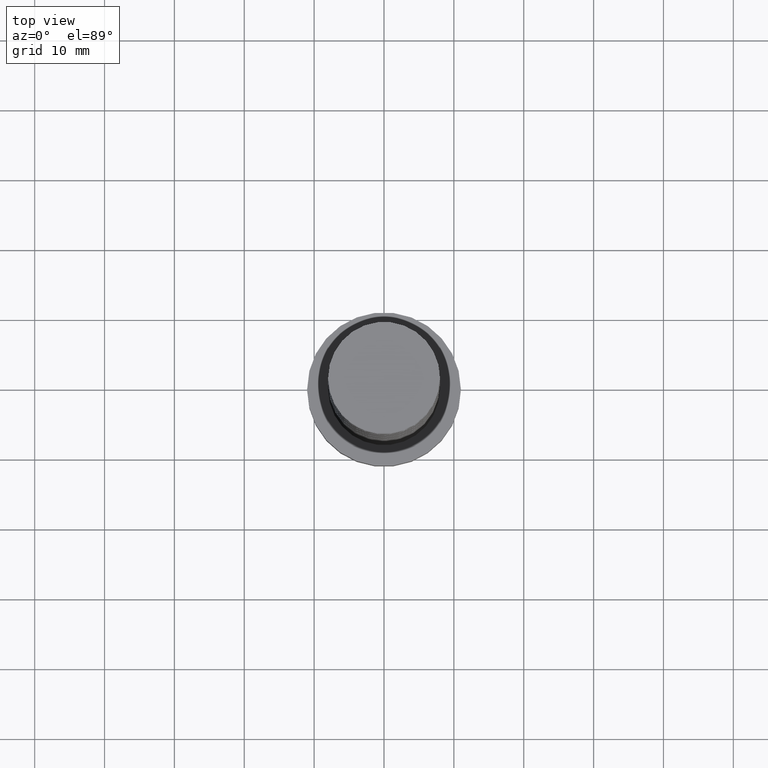
[diagram: clean part render]
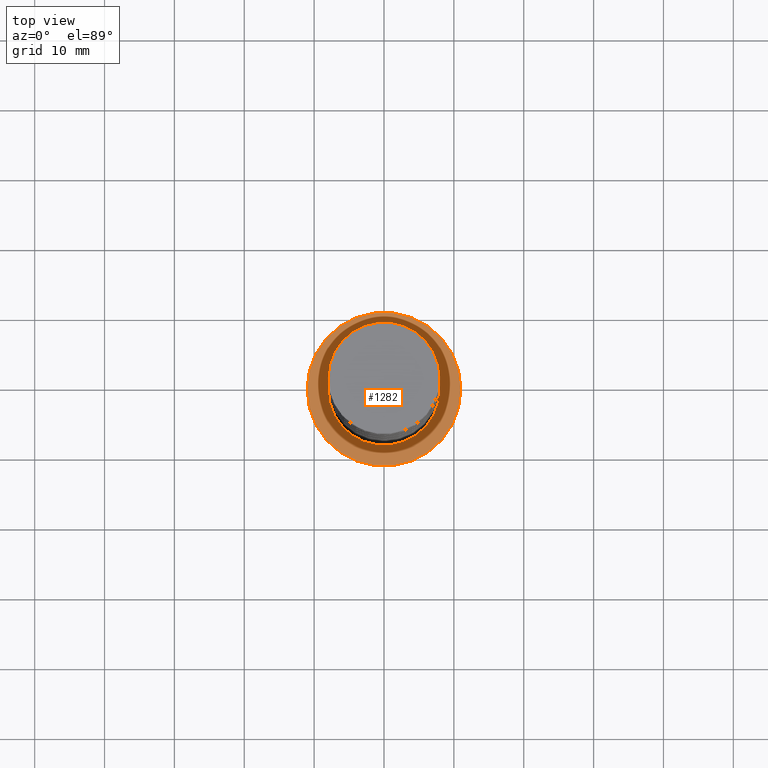
[diagram: same view with one face highlighted and labeled with its STEP entity id]
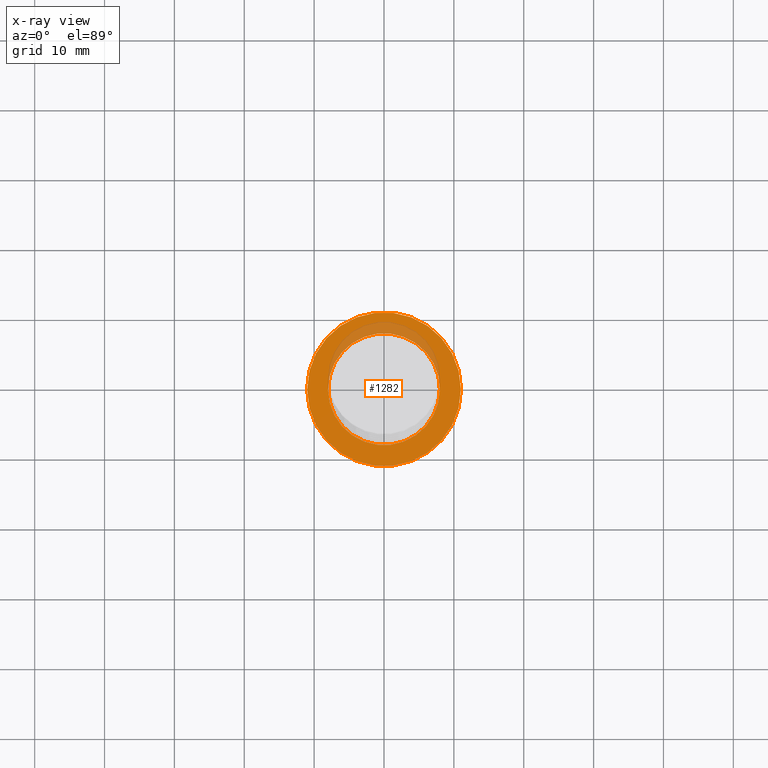
[diagram: x-ray of the same camera — body ghosted, the highlighted face saturated]
A machine part, top view. The second image highlights one B-rep face of the part: STEP entity #1282.
The next image is the same camera in x-ray: the body ghosted, the highlighted face saturated — about 15% of this face is hidden behind the body in this view.
In plain terms, the highlighted planar face has unit normal (0, 0, 1).
Its self-contained STEP definition (entity closure, byte-faithful):
#25 = CARTESIAN_POINT ( 'NONE',  ( -11.00000000000000000, 0.000000000000000000, 7.000000000000000000 ) ) ;
#108 = CARTESIAN_POINT ( 'NONE',  ( 0.000000000000000000, 0.000000000000000000, 7.000000000000000000 ) ) ;
#119 = ORIENTED_EDGE ( 'NONE', *, *, #1037, .T. ) ;
#172 = EDGE_CURVE ( 'NONE', #273, #281, #1345, .T. ) ;
#174 = CARTESIAN_POINT ( 'NONE',  ( -8.000000000000000000, 0.000000000000000000, 7.000000000000000000 ) ) ;
#218 = DIRECTION ( 'NONE',  ( 1.000000000000000000, 0.000000000000000000, 0.000000000000000000 ) ) ;
#246 = DIRECTION ( 'NONE',  ( 0.000000000000000000, 0.000000000000000000, 1.000000000000000000 ) ) ;
#273 = VERTEX_POINT ( 'NONE', #1039 ) ;
#281 = VERTEX_POINT ( 'NONE', #25 ) ;
#330 = CIRCLE ( 'NONE', #541, 8.000000000000000000 ) ;
#350 = CIRCLE ( 'NONE', #399, 8.000000000000000000 ) ;
#399 = AXIS2_PLACEMENT_3D ( 'NONE', #420, #246, #1043 ) ;
#420 = CARTESIAN_POINT ( 'NONE',  ( 0.000000000000000000, 0.000000000000000000, 7.000000000000000000 ) ) ;
#432 = AXIS2_PLACEMENT_3D ( 'NONE', #108, #681, #722 ) ;
#468 = ORIENTED_EDGE ( 'NONE', *, *, #990, .F. ) ;
#498 = ORIENTED_EDGE ( 'NONE', *, *, #172, .T. ) ;
#517 = CARTESIAN_POINT ( 'NONE',  ( 8.000000000000000000, 9.797174393178823685E-16, 7.000000000000000000 ) ) ;
#541 = AXIS2_PLACEMENT_3D ( 'NONE', #1170, #600, #1058 ) ;
#561 = DIRECTION ( 'NONE',  ( 0.000000000000000000, 0.000000000000000000, 1.000000000000000000 ) ) ;
#582 = VERTEX_POINT ( 'NONE', #174 ) ;
#600 = DIRECTION ( 'NONE',  ( 0.000000000000000000, 0.000000000000000000, 1.000000000000000000 ) ) ;
#626 = AXIS2_PLACEMENT_3D ( 'NONE', #963, #887, #761 ) ;
#629 = EDGE_LOOP ( 'NONE', ( #119, #498 ) ) ;
#660 = EDGE_CURVE ( 'NONE', #1447, #582, #350, .T. ) ;
#681 = DIRECTION ( 'NONE',  ( 0.000000000000000000, 0.000000000000000000, 1.000000000000000000 ) ) ;
#722 = DIRECTION ( 'NONE',  ( 1.000000000000000000, 0.000000000000000000, -0.000000000000000000 ) ) ;
#728 = ORIENTED_EDGE ( 'NONE', *, *, #660, .F. ) ;
#761 = DIRECTION ( 'NONE',  ( 1.000000000000000000, 0.000000000000000000, 0.000000000000000000 ) ) ;
#861 = CIRCLE ( 'NONE', #626, 11.00000000000000000 ) ;
#864 = AXIS2_PLACEMENT_3D ( 'NONE', #1242, #561, #218 ) ;
#887 = DIRECTION ( 'NONE',  ( 0.000000000000000000, 0.000000000000000000, 1.000000000000000000 ) ) ;
#963 = CARTESIAN_POINT ( 'NONE',  ( 0.000000000000000000, 0.000000000000000000, 7.000000000000000000 ) ) ;
#990 = EDGE_CURVE ( 'NONE', #582, #1447, #330, .T. ) ;
#1037 = EDGE_CURVE ( 'NONE', #281, #273, #861, .T. ) ;
#1039 = CARTESIAN_POINT ( 'NONE',  ( 11.00000000000000000, 1.347111479062088405E-15, 7.000000000000000000 ) ) ;
#1043 = DIRECTION ( 'NONE',  ( 1.000000000000000000, 0.000000000000000000, 0.000000000000000000 ) ) ;
#1058 = DIRECTION ( 'NONE',  ( 1.000000000000000000, 0.000000000000000000, 0.000000000000000000 ) ) ;
#1137 = FACE_OUTER_BOUND ( 'NONE', #629, .T. ) ;
#1170 = CARTESIAN_POINT ( 'NONE',  ( 0.000000000000000000, 0.000000000000000000, 7.000000000000000000 ) ) ;
#1177 = PLANE ( 'NONE',  #432 ) ;
#1242 = CARTESIAN_POINT ( 'NONE',  ( 0.000000000000000000, 0.000000000000000000, 7.000000000000000000 ) ) ;
#1282 = ADVANCED_FACE ( 'NONE', ( #1378, #1137 ), #1177, .T. ) ;
#1287 = EDGE_LOOP ( 'NONE', ( #468, #728 ) ) ;
#1345 = CIRCLE ( 'NONE', #864, 11.00000000000000000 ) ;
#1378 = FACE_BOUND ( 'NONE', #1287, .T. ) ;
#1447 = VERTEX_POINT ( 'NONE', #517 ) ;